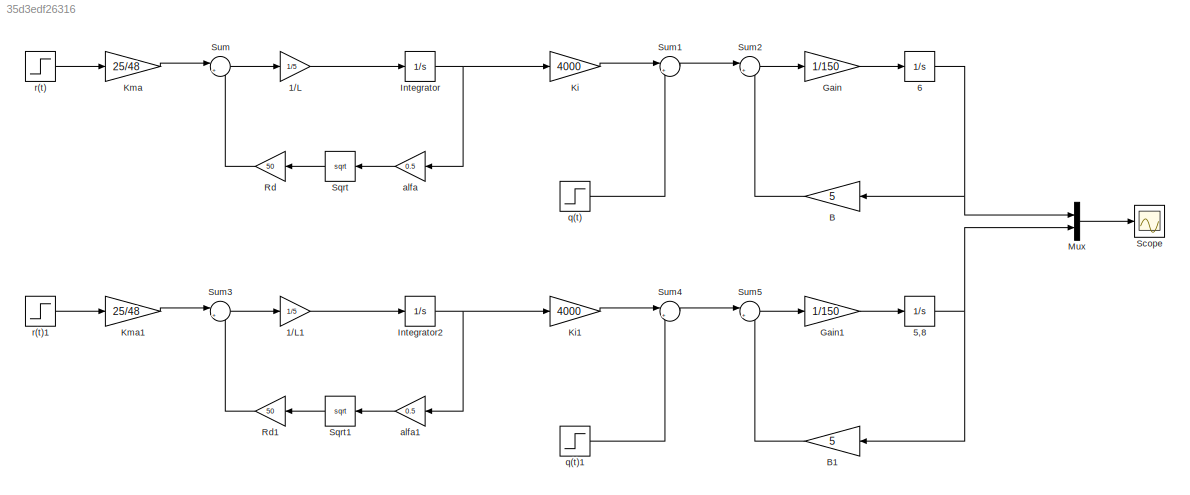
MODEL slx_35d3edf26316
KIND model
CONFIG AbsTol = auto
CONFIG EnableMultiTasking = off
CONFIG FixedStep = auto
CONFIG MaxStep = auto
CONFIG MinStep = auto
CONFIG RelTol = 1e-3
CONFIG SampleTimeConstraint = Unconstrained
CONFIG SolverName = VariableStepAuto
CONFIG StartTime = 0.0
CONFIG StopTime = 450
BLOCK [Gain] 1//L
  Gain = 1/5
BLOCK [Gain] 1//L1
  Gain = 1/5
BLOCK [Integrator] 5,8
  Ports = [1, 1]
BLOCK [Integrator] 6
  Ports = [1, 1]
BLOCK [Gain] B
  Gain = 5
BLOCK [Gain] B1
  Gain = 5
BLOCK [Gain] Gain
  Gain = 1/150
BLOCK [Gain] Gain1
  Gain = 1/150
BLOCK [Integrator] Integrator
  Ports = [1, 1]
BLOCK [Integrator] Integrator2
  Ports = [1, 1]
BLOCK [Gain] Ki
  Gain = 4000
BLOCK [Gain] Ki1
  Gain = 4000
BLOCK [Gain] Kma
  Gain = 25/48
BLOCK [Gain] Kma1
  Gain = 25/48
BLOCK [Mux] Mux
  DisplayOption = bar
  Inputs = 2
  Ports = [2, 1]
BLOCK [Gain] Rd
  Gain = 50
BLOCK [Gain] Rd1
  Gain = 50
BLOCK [Scope] Scope
  Floating = off
  NumInputPorts = 1
  Ports = [1]
  ScopeSpecificationString = Simulink.scopes.TimeScopeBlockCfg('CurrentConfiguration', extmgr.ConfigurationSet(extmgr.Configuration('Core','General UI',true,'FigureColor',[1 1 1]),extmgr.Configuration('Core','Source UI',true),extmgr.Configuration('Sources','WiredSimulink',true),extmgr.Configuration('Visuals','Time Domain',true,'SerializedDisplays',{struct('MinYLimReal','0','MaxYLimReal','6.5','YLabelReal','Velocidade de Giro ...<+1760ch>
BLOCK [Sqrt] Sqrt
BLOCK [Sqrt] Sqrt1
BLOCK [Sum] Sum
  Inputs = |+-
  Ports = [2, 1]
BLOCK [Sum] Sum1
  Inputs = |++
  Ports = [2, 1]
BLOCK [Sum] Sum2
  Inputs = |+-
  Ports = [2, 1]
BLOCK [Sum] Sum3
  Inputs = |+-
  Ports = [2, 1]
BLOCK [Sum] Sum4
  Inputs = |++
  Ports = [2, 1]
BLOCK [Sum] Sum5
  Inputs = |+-
  Ports = [2, 1]
BLOCK [Gain] alfa
  Gain = 0.5
BLOCK [Gain] alfa1
  Gain = 0.5
BLOCK [Step] q(t)
  After = 0
  SampleTime = 0
  Time = 0
BLOCK [Step] q(t)1
  After = 0
  SampleTime = 0
  Time = 0
BLOCK [Step] r(t)
  After = 6
  Before = 5.76
  SampleTime = 0
  Time = 200
BLOCK [Step] r(t)1
  After = 5.8
  Before = 5.76
  SampleTime = 0
  Time = 200
LINE 1//L1:1 -> Integrator2:1
LINE 1//L:1 -> Integrator:1
NET 5,8:1 -> B1:1, Mux:2
NET 6:1 -> B:1, Mux:1
LINE B1:1 -> Sum5:2
LINE B:1 -> Sum2:2
LINE Gain1:1 -> 5,8:1
LINE Gain:1 -> 6:1
NET Integrator2:1 -> Ki1:1, alfa1:1
NET Integrator:1 -> Ki:1, alfa:1
LINE Ki1:1 -> Sum4:1
LINE Ki:1 -> Sum1:1
LINE Kma1:1 -> Sum3:1
LINE Kma:1 -> Sum:1
LINE Mux:1 -> Scope:1
LINE Rd1:1 -> Sum3:2
LINE Rd:1 -> Sum:2
LINE Sqrt1:1 -> Rd1:1
LINE Sqrt:1 -> Rd:1
LINE Sum1:1 -> Sum2:1
LINE Sum2:1 -> Gain:1
LINE Sum3:1 -> 1//L1:1
LINE Sum4:1 -> Sum5:1
LINE Sum5:1 -> Gain1:1
LINE Sum:1 -> 1//L:1
LINE alfa1:1 -> Sqrt1:1
LINE alfa:1 -> Sqrt:1
LINE q(t)1:1 -> Sum4:2
LINE q(t):1 -> Sum1:2
LINE r(t)1:1 -> Kma1:1
LINE r(t):1 -> Kma:1
note: NET lines group one-source signal fan-out (src -> all destinations, sorted); 1:1 wires keep LINE
